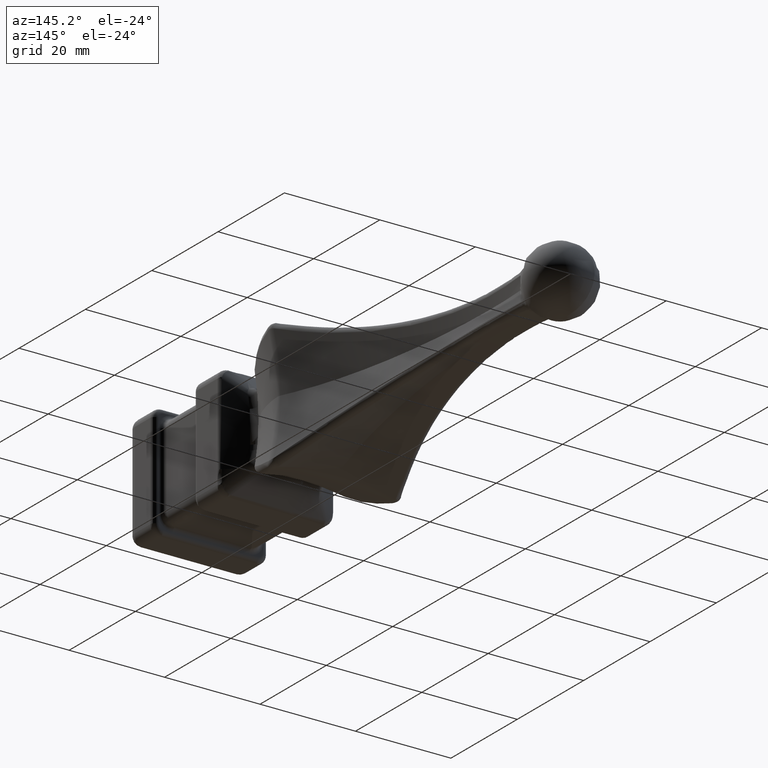
[diagram: clean part render]
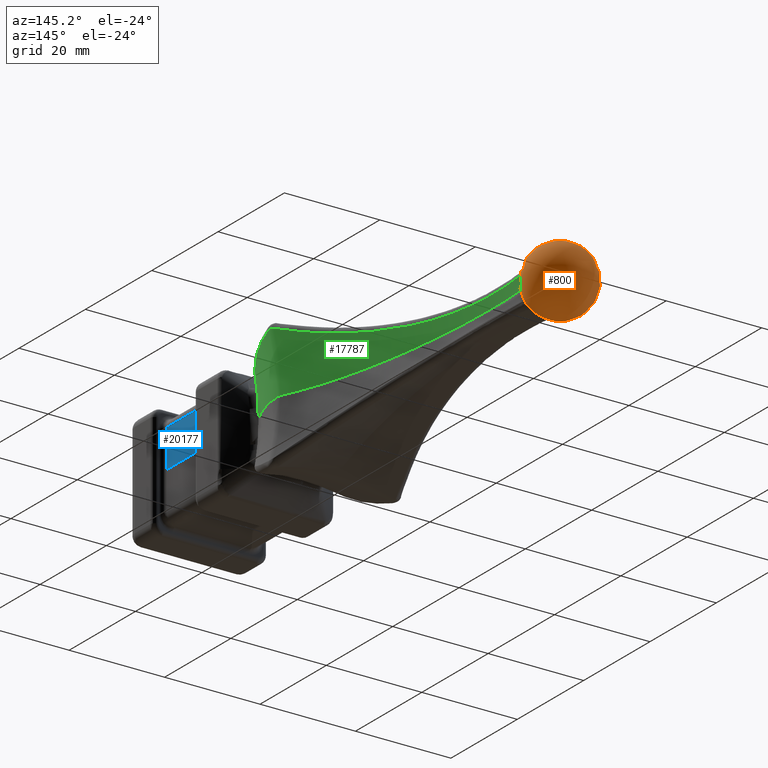
[diagram: same view with three faces highlighted in distinct colors, each labeled with its STEP entity id]
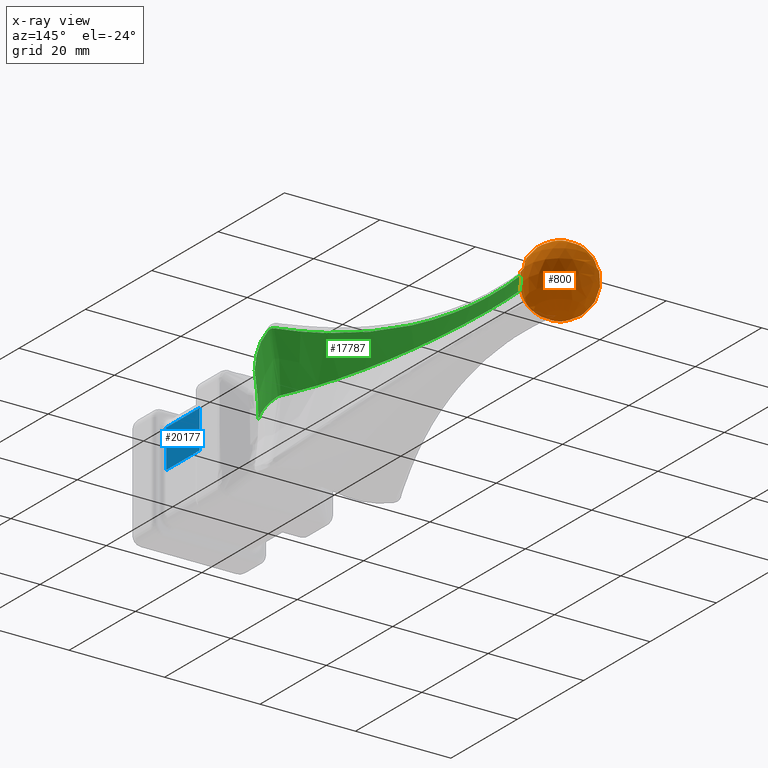
[diagram: x-ray of the same camera — body ghosted, the three highlighted faces saturated]
A machine part, auxiliary view with three faces highlighted in distinct colors.
The next image is the same camera in x-ray (body ghosted, the three faces saturated) — at least one of them is partly hidden behind the body in this view.
Their STEP definitions:

[orange] entity #800 — the highlighted spherical surface has radius 7 mm.
#140 = CARTESIAN_POINT ( 'NONE',  ( -2.588248331346139519, 63.23687483065199189, 4.433376363789666819 ) ) ;
#159 = ORIENTED_EDGE ( 'NONE', *, *, #3412, .T. ) ;
#192 = CARTESIAN_POINT ( 'NONE',  ( 4.268024273023879545, 63.42737115500516865, -3.149088999984718029 ) ) ;
#267 = CARTESIAN_POINT ( 'NONE',  ( 4.478024057012045311, 62.99835578102521083, -2.024660854072735550 ) ) ;
#328 = B_SPLINE_CURVE_WITH_KNOTS ( 'NONE', 3,
 ( #8765, #10263, #1465, #15911, #12092, #8599 ),
 .UNSPECIFIED., .F., .F.,
 ( 4, 2, 4 ),
 ( 4.534480159826896925E-20, 0.0008869341050420175400, 0.001773868210084029659 ),
 .UNSPECIFIED. ) ;
#332 = CARTESIAN_POINT ( 'NONE',  ( 2.959647299440161916, 63.36727956530779693, -4.334601859339713315 ) ) ;
#501 = CARTESIAN_POINT ( 'NONE',  ( 4.399130887182108651, 62.81603833045457463, 1.665589639174088754 ) ) ;
#634 = CARTESIAN_POINT ( 'NONE',  ( 3.736296900180650749, 63.52664665991706983, 3.878089262825789252 ) ) ;
#717 = CARTESIAN_POINT ( 'NONE',  ( 4.399130887182108651, 62.81603833045457463, 1.665589639174088754 ) ) ;
#800 = ADVANCED_FACE ( 'NONE', ( #7537 ), #8939, .T. ) ;
#1108 = CARTESIAN_POINT ( 'NONE',  ( 4.164026902031230826, 62.37310017457587463, 0.2939754137527350042 ) ) ;
#1189 = CARTESIAN_POINT ( 'NONE',  ( 4.201633058992319647, 62.42410017757504903, 0.5837566430972946918 ) ) ;
#1240 = CARTESIAN_POINT ( 'NONE',  ( 1.665589639177142312, 62.81603833045613783, 4.399130887182799654 ) ) ;
#1465 = CARTESIAN_POINT ( 'NONE',  ( -0.5837566430984427734, 62.42410017757527640, -4.201633058992505276 ) ) ;
#1761 = CARTESIAN_POINT ( 'NONE',  ( 2.867389985831997556, 63.33669981117935777, -4.363715184879287001 ) ) ;
#1865 = CARTESIAN_POINT ( 'NONE',  ( -3.878089262828128270, 63.52664665991696324, 3.736296900178079028 ) ) ;
#1927 = CARTESIAN_POINT ( 'NONE',  ( 2.397541925717111777, 63.15887901355646505, -4.456055201778486463 ) ) ;
#2018 = CARTESIAN_POINT ( 'NONE',  ( -1.665589639177118553, 62.81603833045612362, 4.399130887182795213 ) ) ;
#2080 = CARTESIAN_POINT ( 'NONE',  ( 4.480014289733656341, 63.17076291594582216, -2.402941765814902819 ) ) ;
#2101 = CARTESIAN_POINT ( 'NONE',  ( -4.122065436976741992, 63.48592684368493622, 3.412059772699672866 ) ) ;
#2185 = ORIENTED_EDGE ( 'NONE', *, *, #4786, .T. ) ;
#2422 = CARTESIAN_POINT ( 'NONE',  ( 4.399130887182111316, 62.81603833045457463, -1.665589639174102077 ) ) ;
#2456 = CARTESIAN_POINT ( 'NONE',  ( 3.880278391407268490, 63.52653610020637842, 3.733890906868658099 ) ) ;
#2515 = B_SPLINE_CURVE_WITH_KNOTS ( 'NONE', 3,
 ( #12505, #5463, #14229, #3494, #12432, #10773 ),
 .UNSPECIFIED., .F., .F.,
 ( 4, 2, 4 ),
 ( 0.000000000000000000, 0.0008748904172089971886, 0.001749780834417999798 ),
 .UNSPECIFIED. ) ;
#2760 = CARTESIAN_POINT ( 'NONE',  ( -4.069611438968237849, 63.50048093130534710, -3.493274654583412797 ) ) ;
#2827 = CARTESIAN_POINT ( 'NONE',  ( -4.334601859340763141, 63.36727956530674533, -2.959647299437022205 ) ) ;
#3144 = CARTESIAN_POINT ( 'NONE',  ( -4.137010229707008158, 62.35330659949563170, 5.802995667819876212E-15 ) ) ;
#3412 = EDGE_CURVE ( 'NONE', #15056, #13470, #19729, .T. ) ;
#3494 = CARTESIAN_POINT ( 'NONE',  ( -0.5837566430984429955, 62.42410017757526930, 4.201633058992504388 ) ) ;
#3604 = CARTESIAN_POINT ( 'NONE',  ( 1.665589639177119441, 62.81603833045612362, -4.399130887182794325 ) ) ;
#3684 = CARTESIAN_POINT ( 'NONE',  ( 3.878089262828119832, 63.52664665991690640, -3.736296900178084357 ) ) ;
#3738 = EDGE_CURVE ( 'NONE', #23406, #15056, #12464, .T. ) ;
#3930 = CARTESIAN_POINT ( 'NONE',  ( 3.655495390860984628, 63.52113212914929363, -3.948097385949056903 ) ) ;
#4259 = CARTESIAN_POINT ( 'NONE',  ( 4.164026902031229049, 62.37310017457588884, -0.2939754137527299527 ) ) ;
#4453 = CARTESIAN_POINT ( 'NONE',  ( 4.458265288463159060, 62.99438738422897899, 2.027017664148791365 ) ) ;
#4591 = CARTESIAN_POINT ( 'NONE',  ( -2.402941765818094044, 63.17076291594722903, -4.480014289733428967 ) ) ;
#4675 = CARTESIAN_POINT ( 'NONE',  ( -4.438546849320870180, 62.90712628831471420, -1.844985871345510287 ) ) ;
#4746 = CARTESIAN_POINT ( 'NONE',  ( -4.124006641163698639, 63.48530365147707499, -3.408881235299704660 ) ) ;
#4786 = EDGE_CURVE ( 'NONE', #18231, #8023, #10557, .T. ) ;
#5048 = CARTESIAN_POINT ( 'NONE',  ( 4.137010229707005493, 62.35330659949563170, 4.966132077100404992E-15 ) ) ;
#5463 = CARTESIAN_POINT ( 'NONE',  ( -1.406990631983017437, 62.68473537506567794, 4.342312923096714350 ) ) ;
#5568 = VERTEX_POINT ( 'NONE', #501 ) ;
#5583 = CARTESIAN_POINT ( 'NONE',  ( 4.339555982737086204, 63.37095658855356106, -2.963403104990208092 ) ) ;
#5750 = CARTESIAN_POINT ( 'NONE',  ( -3.142590110733721520, 63.42196502299371730, 4.263344601051541893 ) ) ;
#5839 = ORIENTED_EDGE ( 'NONE', *, *, #12457, .T. ) ;
#6087 = VERTEX_POINT ( 'NONE', #8293 ) ;
#6170 = ORIENTED_EDGE ( 'NONE', *, *, #17498, .T. ) ;
#6179 = CARTESIAN_POINT ( 'NONE',  ( 4.456055201778726271, 63.15887901355511502, 2.397541925713916555 ) ) ;
#6322 = CARTESIAN_POINT ( 'NONE',  ( -3.659811834418190024, 63.52151041466510861, -3.944522942018086731 ) ) ;
#6399 = CARTESIAN_POINT ( 'NONE',  ( -3.948097385951256477, 63.52113212914904494, -3.655495390858309435 ) ) ;
#6470 = CARTESIAN_POINT ( 'NONE',  ( -4.399130887182108651, 62.81603833045457463, -1.665589639174087866 ) ) ;
#6571 = CARTESIAN_POINT ( 'NONE',  ( 4.290668341216556492, 62.57987476594967546, 1.139104316289216934 ) ) ;
#6630 = CARTESIAN_POINT ( 'NONE',  ( 0.5837566430984540977, 62.42410017757528351, 4.201633058992506164 ) ) ;
#6705 = DIRECTION ( 'NONE',  ( 1.000000000000000000, 0.000000000000000000, 0.000000000000000000 ) ) ;
#6793 = B_SPLINE_CURVE_WITH_KNOTS ( 'NONE', 3,
 ( #14488, #267, #2080, #5583, #192, #20035, #21920, #14718, #3684, #12775, #3930, #22004, #16537, #9382, #11219, #332, #1761, #7318, #1927, #14408, #16304, #3604 ),
 .UNSPECIFIED., .F., .F.,
 ( 4, 2, 2, 2, 2, 2, 2, 2, 2, 2, 4 ),
 ( 7.854294591569230006E-18, 0.001226346430342773906, 0.001839519645514162702, 0.002146106253099860570, 0.002452692860685558220, 0.002759279468271256305, 0.003065866075856954389, 0.003372452683442652473, 0.003679039291028350124, 0.004292212506199758436, 0.004905385721371166748 ),
 .UNSPECIFIED. ) ;
#6891 = B_SPLINE_CURVE_WITH_KNOTS ( 'NONE', 3,
 ( #19115, #19190, #4591, #15473, #12033, #11887, #21086, #6322, #17277, #15696, #6399, #2760, #4746, #8155, #17360, #2827, #9975, #8303, #10055, #21006, #4675, #6470 ),
 .UNSPECIFIED., .F., .F.,
 ( 4, 2, 2, 2, 2, 2, 2, 2, 2, 2, 4 ),
 ( 0.000000000000000000, 0.001226346430342833754, 0.001839519645514250522, 0.002146106253099962918, 0.002452692860685674880, 0.002759279468271385975, 0.003065866075857097504, 0.003372452683442808165, 0.003679039291028519693, 0.004292212506199942317, 0.004905385721371365373 ),
 .UNSPECIFIED. ) ;
#6996 = CARTESIAN_POINT ( 'NONE',  ( 0.2939754137533061584, 62.37310017457594569, -4.164026902031319644 ) ) ;
#7254 = CARTESIAN_POINT ( 'NONE',  ( -3.733890906871248472, 63.52653610020649211, 3.880278391404916594 ) ) ;
#7318 = CARTESIAN_POINT ( 'NONE',  ( 2.588248331346119091, 63.23687483065193504, -4.433376363789670371 ) ) ;
#7413 = CARTESIAN_POINT ( 'NONE',  ( -2.867389985832010435, 63.33669981117937198, 4.363715184879281672 ) ) ;
#7497 = CARTESIAN_POINT ( 'NONE',  ( -4.478024057012045311, 62.99835578102519662, 2.024660854072733773 ) ) ;
#7537 = FACE_OUTER_BOUND ( 'NONE', #18749, .T. ) ;
#7562 = B_SPLINE_CURVE_WITH_KNOTS ( 'NONE', 3,
 ( #13348, #4259, #9718, #13278, #11564, #2422 ),
 .UNSPECIFIED., .F., .F.,
 ( 4, 2, 4 ),
 ( 0.000000000000000000, 0.0008869341050403021154, 0.001773868210080609652 ),
 .UNSPECIFIED. ) ;
#7581 = CARTESIAN_POINT ( 'NONE',  ( -4.339555982737088868, 63.37095658855356106, 2.963403104990192549 ) ) ;
#7757 = EDGE_CURVE ( 'NONE', #9001, #23406, #6891, .T. ) ;
#7923 = CARTESIAN_POINT ( 'NONE',  ( 4.263344601052897254, 63.42196502299284333, 3.142590110730611119 ) ) ;
#7982 = ORIENTED_EDGE ( 'NONE', *, *, #7757, .T. ) ;
#8023 = VERTEX_POINT ( 'NONE', #16411 ) ;
#8067 = ORIENTED_EDGE ( 'NONE', *, *, #16952, .T. ) ;
#8155 = CARTESIAN_POINT ( 'NONE',  ( -4.220800387937507558, 63.44615532346654874, -3.233841047315286765 ) ) ;
#8293 = CARTESIAN_POINT ( 'NONE',  ( 1.665589639177119441, 62.81603833045612362, -4.399130887182794325 ) ) ;
#8303 = CARTESIAN_POINT ( 'NONE',  ( -4.433376363790173080, 63.23687483065068449, -2.588248331342916764 ) ) ;
#8409 = CARTESIAN_POINT ( 'NONE',  ( 4.137010229707005493, 62.35330659949563170, 4.966132077100404992E-15 ) ) ;
#8599 = CARTESIAN_POINT ( 'NONE',  ( -1.665589639177119441, 62.81603833045612362, -4.399130887182794325 ) ) ;
#8641 = EDGE_CURVE ( 'NONE', #15354, #18811, #7562, .T. ) ;
#8765 = CARTESIAN_POINT ( 'NONE',  ( 2.479606545851672087E-16, 62.35330659949566723, -4.137010229707046349 ) ) ;
#8939 = SPHERICAL_SURFACE ( 'NONE', #15910, 7.000000000000002665 ) ;
#9001 = VERTEX_POINT ( 'NONE', #21933 ) ;
#9202 = VERTEX_POINT ( 'NONE', #18980 ) ;
#9331 = CARTESIAN_POINT ( 'NONE',  ( -4.268024273023881321, 63.42737115500518286, 3.149088999984712700 ) ) ;
#9350 = B_SPLINE_CURVE_WITH_KNOTS ( 'NONE', 3,
 ( #11613, #10155, #6571, #1189, #1108, #8409 ),
 .UNSPECIFIED., .F., .F.,
 ( 4, 2, 4 ),
 ( 0.000000000000000000, 0.0008748904172072948827, 0.001749780834414583911 ),
 .UNSPECIFIED. ) ;
#9382 = CARTESIAN_POINT ( 'NONE',  ( 3.233841047318325224, 63.44615532346730902, -4.220800387936011866 ) ) ;
#9572 = CARTESIAN_POINT ( 'NONE',  ( -4.201633058992317871, 62.42410017757504903, -0.5837566430972828124 ) ) ;
#9718 = CARTESIAN_POINT ( 'NONE',  ( 4.201633058992320535, 62.42410017757505614, -0.5837566430972918052 ) ) ;
#9757 = CARTESIAN_POINT ( 'NONE',  ( 4.334601859340767582, 63.36727956530677375, 2.959647299437012880 ) ) ;
#9835 = CARTESIAN_POINT ( 'NONE',  ( 3.948097385951261806, 63.52113212914901652, 3.655495390858300997 ) ) ;
#9975 = CARTESIAN_POINT ( 'NONE',  ( -4.363715184880198272, 63.33669981117824932, -2.867389985828836085 ) ) ;
#10055 = CARTESIAN_POINT ( 'NONE',  ( -4.456055201778725383, 63.15887901355510081, -2.397541925713919220 ) ) ;
#10155 = CARTESIAN_POINT ( 'NONE',  ( 4.342312923096168120, 62.68473537506458371, 1.406990631980389095 ) ) ;
#10239 = CARTESIAN_POINT ( 'NONE',  ( 1.665589639177119441, 62.81603833045612362, -4.399130887182794325 ) ) ;
#10263 = CARTESIAN_POINT ( 'NONE',  ( -0.2939754137533057143, 62.37310017457595279, -4.164026902031320532 ) ) ;
#10281 = ORIENTED_EDGE ( 'NONE', *, *, #11686, .T. ) ;
#10358 = CARTESIAN_POINT ( 'NONE',  ( 1.406990631983040085, 62.68473537506572058, 4.342312923096719679 ) ) ;
#10435 = DIRECTION ( 'NONE',  ( 0.000000000000000000, 0.000000000000000000, -1.000000000000000000 ) ) ;
#10557 = B_SPLINE_CURVE_WITH_KNOTS ( 'NONE', 3,
 ( #22811, #15396, #6630, #19035, #10358, #1240 ),
 .UNSPECIFIED., .F., .F.,
 ( 4, 2, 4 ),
 ( 0.000000000000000000, 0.0008869341050420252379, 0.001773868210084055897 ),
 .UNSPECIFIED. ) ;
#10773 = CARTESIAN_POINT ( 'NONE',  ( -4.286540393567421458E-16, 62.35330659949566723, 4.137010229707046349 ) ) ;
#11003 = CARTESIAN_POINT ( 'NONE',  ( -2.959647299440173018, 63.36727956530778272, 4.334601859339707097 ) ) ;
#11078 = CARTESIAN_POINT ( 'NONE',  ( -1.844985871348603146, 62.90712628831625608, 4.438546849321341803 ) ) ;
#11164 = CARTESIAN_POINT ( 'NONE',  ( -4.399130887182039373, 62.81603833045453200, 1.665589639174137382 ) ) ;
#11219 = CARTESIAN_POINT ( 'NONE',  ( 3.142590110733706865, 63.42196502299373151, -4.263344601051551663 ) ) ;
#11564 = CARTESIAN_POINT ( 'NONE',  ( 4.342312923096172561, 62.68473537506458371, -1.406990631980400419 ) ) ;
#11577 = VERTEX_POINT ( 'NONE', #20431 ) ;
#11595 = CARTESIAN_POINT ( 'NONE',  ( 4.438546849320870180, 62.90712628831471420, 1.844985871345509176 ) ) ;
#11613 = CARTESIAN_POINT ( 'NONE',  ( 4.399130887182108651, 62.81603833045457463, 1.665589639174088754 ) ) ;
#11686 = EDGE_CURVE ( 'NONE', #5568, #15354, #9350, .T. ) ;
#11887 = CARTESIAN_POINT ( 'NONE',  ( -3.412059772702609628, 63.48592684368553307, -4.122065436974947872 ) ) ;
#12033 = CARTESIAN_POINT ( 'NONE',  ( -3.149088999987798232, 63.42737115500609946, -4.268024273022541948 ) ) ;
#12092 = CARTESIAN_POINT ( 'NONE',  ( -1.406990631983018769, 62.68473537506566373, -4.342312923096713462 ) ) ;
#12330 = CARTESIAN_POINT ( 'NONE',  ( 0.000000000000000000, 68.00000000000000000, 0.000000000000000000 ) ) ;
#12432 = CARTESIAN_POINT ( 'NONE',  ( -0.2939754137533064360, 62.37310017457593858, 4.164026902031320532 ) ) ;
#12457 = EDGE_CURVE ( 'NONE', #13470, #11577, #17594, .T. ) ;
#12464 = B_SPLINE_CURVE_WITH_KNOTS ( 'NONE', 3,
 ( #18634, #20598, #15212, #9572, #13269, #22319 ),
 .UNSPECIFIED., .F., .F.,
 ( 4, 2, 4 ),
 ( 1.951563910473907981E-18, 0.0008748904172072993280, 0.001749780834414591283 ),
 .UNSPECIFIED. ) ;
#12505 = CARTESIAN_POINT ( 'NONE',  ( -1.665589639177118553, 62.81603833045612362, 4.399130887182795213 ) ) ;
#12578 = CARTESIAN_POINT ( 'NONE',  ( -4.201633058992321423, 62.42410017757504193, 0.5837566430973001319 ) ) ;
#12671 = CARTESIAN_POINT ( 'NONE',  ( -4.399130887182108651, 62.81603833045457463, -1.665589639174087866 ) ) ;
#12722 = CARTESIAN_POINT ( 'NONE',  ( -3.233841047318338546, 63.44615532346730191, 4.220800387936004761 ) ) ;
#12775 = CARTESIAN_POINT ( 'NONE',  ( 3.733890906871234705, 63.52653610020649211, -3.880278391404925920 ) ) ;
#12945 = CARTESIAN_POINT ( 'NONE',  ( -4.137010229707008158, 62.35330659949563170, 5.802995667819876212E-15 ) ) ;
#12963 = CARTESIAN_POINT ( 'NONE',  ( -4.480014289733651012, 63.17076291594582216, 2.402941765814900599 ) ) ;
#13195 = EDGE_CURVE ( 'NONE', #8023, #5568, #21238, .T. ) ;
#13269 = CARTESIAN_POINT ( 'NONE',  ( -4.164026902031229938, 62.37310017457586042, -0.2939754137527242905 ) ) ;
#13278 = CARTESIAN_POINT ( 'NONE',  ( 4.290668341216558268, 62.57987476594968967, -1.139104316289220931 ) ) ;
#13307 = CARTESIAN_POINT ( 'NONE',  ( 3.412059772702624727, 63.48592684368553307, 4.122065436974939878 ) ) ;
#13348 = CARTESIAN_POINT ( 'NONE',  ( 4.137010229707005493, 62.35330659949563170, 4.966132077100404992E-15 ) ) ;
#13382 = CARTESIAN_POINT ( 'NONE',  ( 3.659811834418202903, 63.52151041466512282, 3.944522942018079625 ) ) ;
#13470 = VERTEX_POINT ( 'NONE', #11164 ) ;
#14057 = CARTESIAN_POINT ( 'NONE',  ( -4.342312923096170785, 62.68473537506458371, 1.406990631980395978 ) ) ;
#14229 = CARTESIAN_POINT ( 'NONE',  ( -1.139104316291387198, 62.57987476595040732, 4.290668341216970383 ) ) ;
#14339 = CARTESIAN_POINT ( 'NONE',  ( 1.139104316291387420, 62.57987476595042153, -4.290668341216969495 ) ) ;
#14408 = CARTESIAN_POINT ( 'NONE',  ( 2.027017664151925747, 62.99438738423049244, -4.458265288463403309 ) ) ;
#14488 = CARTESIAN_POINT ( 'NONE',  ( 4.399130887182111316, 62.81603833045457463, -1.665589639174102077 ) ) ;
#14592 = CARTESIAN_POINT ( 'NONE',  ( -3.493274654586262518, 63.50048093130582316, 4.069611438966312278 ) ) ;
#14718 = CARTESIAN_POINT ( 'NONE',  ( 3.944522942020284528, 63.52151041466485992, -3.659811834415536591 ) ) ;
#14736 = CARTESIAN_POINT ( 'NONE',  ( -4.399130887182039373, 62.81603833045453200, 1.665589639174137382 ) ) ;
#14947 = CARTESIAN_POINT ( 'NONE',  ( 2.402941765818115361, 63.17076291594724324, 4.480014289733429855 ) ) ;
#15056 = VERTEX_POINT ( 'NONE', #12945 ) ;
#15100 = CARTESIAN_POINT ( 'NONE',  ( 4.069611438968243178, 63.50048093130537552, 3.493274654583404804 ) ) ;
#15212 = CARTESIAN_POINT ( 'NONE',  ( -4.290668341216555604, 62.57987476594968967, -1.139104316289208496 ) ) ;
#15250 = CARTESIAN_POINT ( 'NONE',  ( 3.498068338153559775, 63.50125302394335591, 4.066343125762529098 ) ) ;
#15354 = VERTEX_POINT ( 'NONE', #5048 ) ;
#15396 = CARTESIAN_POINT ( 'NONE',  ( 0.2939754137533099887, 62.37310017457595990, 4.164026902031322308 ) ) ;
#15473 = CARTESIAN_POINT ( 'NONE',  ( -2.963403104993369563, 63.37095658855461267, -4.339555982736027495 ) ) ;
#15696 = CARTESIAN_POINT ( 'NONE',  ( -3.880278391407260052, 63.52653610020639263, -3.733890906868666537 ) ) ;
#15910 = AXIS2_PLACEMENT_3D ( 'NONE', #12330, #10435, #6705 ) ;
#15911 = CARTESIAN_POINT ( 'NONE',  ( -1.139104316291386976, 62.57987476595039311, -4.290668341216968606 ) ) ;
#16304 = CARTESIAN_POINT ( 'NONE',  ( 1.844985871348601592, 62.90712628831627029, -4.438546849321340027 ) ) ;
#16411 = CARTESIAN_POINT ( 'NONE',  ( 1.665589639177142312, 62.81603833045613783, 4.399130887182799654 ) ) ;
#16537 = CARTESIAN_POINT ( 'NONE',  ( 3.408881235302617885, 63.48530365147765764, -4.124006641161921394 ) ) ;
#16558 = CARTESIAN_POINT ( 'NONE',  ( -4.066343125764481314, 63.50125302394286564, 3.498068338150693624 ) ) ;
#16755 = CARTESIAN_POINT ( 'NONE',  ( 2.963403104993389103, 63.37095658855461267, 4.339555982736022166 ) ) ;
#16952 = EDGE_CURVE ( 'NONE', #6087, #9202, #17519, .T. ) ;
#17094 = EDGE_CURVE ( 'NONE', #18811, #6087, #6793, .T. ) ;
#17277 = CARTESIAN_POINT ( 'NONE',  ( -3.736296900180637426, 63.52664665991704140, -3.878089262825796357 ) ) ;
#17360 = CARTESIAN_POINT ( 'NONE',  ( -4.263344601052893701, 63.42196502299287175, -3.142590110730623110 ) ) ;
#17498 = EDGE_CURVE ( 'NONE', #11577, #18231, #2515, .T. ) ;
#17519 = B_SPLINE_CURVE_WITH_KNOTS ( 'NONE', 3,
 ( #10239, #21372, #14339, #23323, #6996, #19477 ),
 .UNSPECIFIED., .F., .F.,
 ( 4, 2, 4 ),
 ( 0.000000000000000000, 0.0008748904172089976223, 0.001749780834418000666 ),
 .UNSPECIFIED. ) ;
#17533 = ORIENTED_EDGE ( 'NONE', *, *, #3738, .T. ) ;
#17594 = B_SPLINE_CURVE_WITH_KNOTS ( 'NONE', 3,
 ( #14736, #7497, #12963, #7581, #9331, #2101, #16558, #18067, #1865, #7254, #21779, #14592, #21710, #12722, #5750, #11003, #7413, #140, #20054, #21862, #11078, #2018 ),
 .UNSPECIFIED., .F., .F.,
 ( 4, 2, 2, 2, 2, 2, 2, 2, 2, 2, 4 ),
 ( 0.000000000000000000, 0.001226346430342767834, 0.001839519645514151643, 0.002146106253099848427, 0.002452692860685544776, 0.002759279468271240692, 0.003065866075856937475, 0.003372452683442633391, 0.003679039291028330175, 0.004292212506199724609, 0.004905385721371119043 ),
 .UNSPECIFIED. ) ;
#17924 = CARTESIAN_POINT ( 'NONE',  ( -4.164026902031230826, 62.37310017457587463, 0.2939754137527401667 ) ) ;
#18067 = CARTESIAN_POINT ( 'NONE',  ( -3.944522942020294742, 63.52151041466487413, 3.659811834415531262 ) ) ;
#18231 = VERTEX_POINT ( 'NONE', #21751 ) ;
#18581 = ORIENTED_EDGE ( 'NONE', *, *, #8641, .T. ) ;
#18600 = CARTESIAN_POINT ( 'NONE',  ( 4.220800387937509335, 63.44615532346653453, 3.233841047315277439 ) ) ;
#18634 = CARTESIAN_POINT ( 'NONE',  ( -4.399130887182108651, 62.81603833045457463, -1.665589639174087866 ) ) ;
#18745 = CARTESIAN_POINT ( 'NONE',  ( 4.124006641163704856, 63.48530365147707499, 3.408881235299696222 ) ) ;
#18749 = EDGE_LOOP ( 'NONE', ( #7982, #17533, #159, #5839, #6170, #2185, #19367, #10281, #18581, #19415, #8067, #21073 ) ) ;
#18811 = VERTEX_POINT ( 'NONE', #21209 ) ;
#18980 = CARTESIAN_POINT ( 'NONE',  ( 2.479606545851672087E-16, 62.35330659949566723, -4.137010229707046349 ) ) ;
#19035 = CARTESIAN_POINT ( 'NONE',  ( 1.139104316291406294, 62.57987476595043574, 4.290668341216973936 ) ) ;
#19115 = CARTESIAN_POINT ( 'NONE',  ( -1.665589639177119441, 62.81603833045612362, -4.399130887182794325 ) ) ;
#19190 = CARTESIAN_POINT ( 'NONE',  ( -2.024660854075853500, 62.99835578102675981, -4.478024057012367720 ) ) ;
#19367 = ORIENTED_EDGE ( 'NONE', *, *, #13195, .T. ) ;
#19415 = ORIENTED_EDGE ( 'NONE', *, *, #17094, .T. ) ;
#19464 = EDGE_CURVE ( 'NONE', #9202, #9001, #328, .T. ) ;
#19477 = CARTESIAN_POINT ( 'NONE',  ( 2.479606545851672087E-16, 62.35330659949566723, -4.137010229707046349 ) ) ;
#19584 = CARTESIAN_POINT ( 'NONE',  ( -4.399130887182039373, 62.81603833045453200, 1.665589639174137382 ) ) ;
#19729 = B_SPLINE_CURVE_WITH_KNOTS ( 'NONE', 3,
 ( #3144, #17924, #12578, #21232, #14057, #19584 ),
 .UNSPECIFIED., .F., .F.,
 ( 4, 2, 4 ),
 ( 0.000000000000000000, 0.0008869341050403004890, 0.001773868210080606833 ),
 .UNSPECIFIED. ) ;
#20035 = CARTESIAN_POINT ( 'NONE',  ( 4.122065436976737551, 63.48592684368496464, -3.412059772699685745 ) ) ;
#20054 = CARTESIAN_POINT ( 'NONE',  ( -2.397541925717129985, 63.15887901355646505, 4.456055201778485575 ) ) ;
#20413 = CARTESIAN_POINT ( 'NONE',  ( 4.363715184880201825, 63.33669981117824932, 2.867389985828829868 ) ) ;
#20431 = CARTESIAN_POINT ( 'NONE',  ( -1.665589639177118553, 62.81603833045612362, 4.399130887182795213 ) ) ;
#20485 = CARTESIAN_POINT ( 'NONE',  ( 2.024660854075876149, 62.99835578102677403, 4.478024057012367720 ) ) ;
#20564 = CARTESIAN_POINT ( 'NONE',  ( 1.665589639177142312, 62.81603833045613783, 4.399130887182799654 ) ) ;
#20598 = CARTESIAN_POINT ( 'NONE',  ( -4.342312923096169897, 62.68473537506459792, -1.406990631980386430 ) ) ;
#21006 = CARTESIAN_POINT ( 'NONE',  ( -4.458265288463159060, 62.99438738422896478, -2.027017664148792253 ) ) ;
#21073 = ORIENTED_EDGE ( 'NONE', *, *, #19464, .T. ) ;
#21086 = CARTESIAN_POINT ( 'NONE',  ( -3.498068338153546897, 63.50125302394332749, -4.066343125762537092 ) ) ;
#21209 = CARTESIAN_POINT ( 'NONE',  ( 4.399130887182111316, 62.81603833045457463, -1.665589639174102077 ) ) ;
#21232 = CARTESIAN_POINT ( 'NONE',  ( -4.290668341216559156, 62.57987476594968967, 1.139104316289228036 ) ) ;
#21238 = B_SPLINE_CURVE_WITH_KNOTS ( 'NONE', 3,
 ( #20564, #20485, #14947, #16755, #22293, #13307, #15250, #13382, #634, #2456, #9835, #15100, #18745, #18600, #7923, #9757, #20413, #22355, #6179, #4453, #11595, #717 ),
 .UNSPECIFIED., .F., .F.,
 ( 4, 2, 2, 2, 2, 2, 2, 2, 2, 2, 4 ),
 ( 0.000000000000000000, 0.001226346430342826381, 0.001839519645514239680, 0.002146106253099949908, 0.002452692860685660569, 0.002759279468271370363, 0.003065866075857080156, 0.003372452683442789950, 0.003679039291028499744, 0.004292212506199919765, 0.004905385721371339353 ),
 .UNSPECIFIED. ) ;
#21372 = CARTESIAN_POINT ( 'NONE',  ( 1.406990631983018547, 62.68473537506567794, -4.342312923096715238 ) ) ;
#21710 = CARTESIAN_POINT ( 'NONE',  ( -3.408881235302627655, 63.48530365147767185, 4.124006641161916953 ) ) ;
#21751 = CARTESIAN_POINT ( 'NONE',  ( -4.286540393567421458E-16, 62.35330659949566723, 4.137010229707046349 ) ) ;
#21779 = CARTESIAN_POINT ( 'NONE',  ( -3.655495390860996618, 63.52113212914926521, 3.948097385949043581 ) ) ;
#21862 = CARTESIAN_POINT ( 'NONE',  ( -2.027017664151930187, 62.99438738423047823, 4.458265288463403309 ) ) ;
#21920 = CARTESIAN_POINT ( 'NONE',  ( 4.066343125764471544, 63.50125302394286564, -3.498068338150702061 ) ) ;
#21933 = CARTESIAN_POINT ( 'NONE',  ( -1.665589639177119441, 62.81603833045612362, -4.399130887182794325 ) ) ;
#22004 = CARTESIAN_POINT ( 'NONE',  ( 3.493274654586254524, 63.50048093130583737, -4.069611438966320272 ) ) ;
#22293 = CARTESIAN_POINT ( 'NONE',  ( 3.149088999987816440, 63.42737115500608525, 4.268024273022533954 ) ) ;
#22319 = CARTESIAN_POINT ( 'NONE',  ( -4.137010229707008158, 62.35330659949563170, 5.802995667819876212E-15 ) ) ;
#22355 = CARTESIAN_POINT ( 'NONE',  ( 4.433376363790175745, 63.23687483065069870, 2.588248331342914099 ) ) ;
#22811 = CARTESIAN_POINT ( 'NONE',  ( -4.286540393567421458E-16, 62.35330659949566723, 4.137010229707046349 ) ) ;
#23323 = CARTESIAN_POINT ( 'NONE',  ( 0.5837566430984426624, 62.42410017757527640, -4.201633058992504388 ) ) ;
#23406 = VERTEX_POINT ( 'NONE', #12671 ) ;

[blue] entity #20177 — the highlighted planar face has unit normal (1, 0, -0).
#139 = VERTEX_POINT ( 'NONE', #7091 ) ;
#518 = CARTESIAN_POINT ( 'NONE',  ( 10.00000000000000178, -25.24999999999999289, 0.000000000000000000 ) ) ;
#571 = CARTESIAN_POINT ( 'NONE',  ( 10.00000000000000533, -36.25000000000000711, 8.000000000000001776 ) ) ;
#1363 = DIRECTION ( 'NONE',  ( 1.734723475976127934E-16, -0.000000000000000000, 1.000000000000000000 ) ) ;
#2051 = LINE ( 'NONE', #518, #13643 ) ;
#2354 = LINE ( 'NONE', #15293, #18496 ) ;
#2681 = LINE ( 'NONE', #21044, #21923 ) ;
#3460 = CARTESIAN_POINT ( 'NONE',  ( 10.00000000000000355, -25.24999999999999289, 8.000000000000000000 ) ) ;
#4196 = CARTESIAN_POINT ( 'NONE',  ( 10.00000000000000355, -26.24999999999999645, 8.000000000000000000 ) ) ;
#5477 = LINE ( 'NONE', #3460, #14513 ) ;
#7091 = CARTESIAN_POINT ( 'NONE',  ( 10.00000000000000355, -36.25000000000000711, 0.000000000000000000 ) ) ;
#7807 = ORIENTED_EDGE ( 'NONE', *, *, #9689, .T. ) ;
#8826 = FACE_OUTER_BOUND ( 'NONE', #13418, .T. ) ;
#9538 = DIRECTION ( 'NONE',  ( -1.734723475976127934E-16, 0.000000000000000000, -1.000000000000000000 ) ) ;
#9554 = VERTEX_POINT ( 'NONE', #4196 ) ;
#9689 = EDGE_CURVE ( 'NONE', #15757, #139, #2354, .T. ) ;
#10022 = AXIS2_PLACEMENT_3D ( 'NONE', #20342, #14642, #9538 ) ;
#10258 = VERTEX_POINT ( 'NONE', #20153 ) ;
#11122 = PLANE ( 'NONE',  #10022 ) ;
#12007 = DIRECTION ( 'NONE',  ( -1.734723475976127934E-16, 0.000000000000000000, -1.000000000000000000 ) ) ;
#12361 = EDGE_CURVE ( 'NONE', #9554, #15757, #5477, .T. ) ;
#13192 = DIRECTION ( 'NONE',  ( 1.445602896647337931E-16, -1.000000000000000000, 0.000000000000000000 ) ) ;
#13418 = EDGE_LOOP ( 'NONE', ( #18553, #7807, #15552, #16896 ) ) ;
#13643 = VECTOR ( 'NONE', #13192, 1000.000000000000000 ) ;
#14513 = VECTOR ( 'NONE', #15912, 1000.000000000000000 ) ;
#14642 = DIRECTION ( 'NONE',  ( 1.000000000000000000, 1.445602896647337931E-16, -1.734723475976127934E-16 ) ) ;
#15293 = CARTESIAN_POINT ( 'NONE',  ( 10.00000000000000355, -36.25000000000000711, 1.734723475976127195E-16 ) ) ;
#15406 = EDGE_CURVE ( 'NONE', #10258, #9554, #2681, .T. ) ;
#15552 = ORIENTED_EDGE ( 'NONE', *, *, #18941, .F. ) ;
#15757 = VERTEX_POINT ( 'NONE', #571 ) ;
#15912 = DIRECTION ( 'NONE',  ( 1.445602896647338177E-16, -1.000000000000000000, 1.445602896647337684E-16 ) ) ;
#16896 = ORIENTED_EDGE ( 'NONE', *, *, #15406, .T. ) ;
#18496 = VECTOR ( 'NONE', #12007, 1000.000000000000000 ) ;
#18553 = ORIENTED_EDGE ( 'NONE', *, *, #12361, .T. ) ;
#18941 = EDGE_CURVE ( 'NONE', #10258, #139, #2051, .T. ) ;
#20153 = CARTESIAN_POINT ( 'NONE',  ( 10.00000000000000178, -26.24999999999999645, 0.000000000000000000 ) ) ;
#20177 = ADVANCED_FACE ( 'NONE', ( #8826 ), #11122, .T. ) ;
#20342 = CARTESIAN_POINT ( 'NONE',  ( 10.00000000000000355, -25.24999999999999289, 9.999999999987206678 ) ) ;
#21044 = CARTESIAN_POINT ( 'NONE',  ( 10.00000000000000355, -26.24999999999999645, 8.000000000000000000 ) ) ;
#21923 = VECTOR ( 'NONE', #1363, 1000.000000000000000 ) ;

[green] entity #17787 — the highlighted face is a freeform B-spline surface patch.
#51 = CARTESIAN_POINT ( 'NONE',  ( 9.089507886685982641, -9.851439428416769672, -1.039309426281026516E-15 ) ) ;
#71 = CARTESIAN_POINT ( 'NONE',  ( 10.66013364980173073, -6.509686201536424299, -7.642354766601944531E-16 ) ) ;
#137 = CARTESIAN_POINT ( 'NONE',  ( 4.084095949260219349, 65.00000000000000000, -3.554666846164149963 ) ) ;
#209 = CARTESIAN_POINT ( 'NONE',  ( 12.35587598936656661, 0.1731413304700771538, -7.138364592670788156 ) ) ;
#229 = CARTESIAN_POINT ( 'NONE',  ( 11.70022174028316897, 1.088503866713622426, -1.382357769919018153E-15 ) ) ;
#280 = CARTESIAN_POINT ( 'NONE',  ( 8.697324480793799495, -10.36600823471877497, -0.07270971805892470496 ) ) ;
#354 = CARTESIAN_POINT ( 'NONE',  ( 11.47428454134255738, -7.420088566662869312, -9.031283173792266084 ) ) ;
#440 = CARTESIAN_POINT ( 'NONE',  ( 2.108233144686161520, 42.78077431313261769, 0.8342126229220272471 ) ) ;
#464 = EDGE_CURVE ( 'NONE', #23401, #5422, #14036, .T. ) ;
#564 = CARTESIAN_POINT ( 'NONE',  ( 9.086514475162925208, -9.855104918972967809, 1.417943683520374476 ) ) ;
#584 = CARTESIAN_POINT ( 'NONE',  ( 14.03014205141056614, 0.1731413304700777367, -14.06703930854518347 ) ) ;
#661 = CARTESIAN_POINT ( 'NONE',  ( 2.773624533673034964, 42.78077431313261769, -21.33295401764565113 ) ) ;
#1039 = CARTESIAN_POINT ( 'NONE',  ( 9.833574572509364842, -9.823411236304195882, 8.557350471120965807 ) ) ;
#1140 = B_SPLINE_CURVE_WITH_KNOTS ( 'NONE', 3,
 ( #4476, #8105, #8332, #13628, #1039, #4395 ),
 .UNSPECIFIED., .F., .F.,
 ( 4, 2, 4 ),
 ( 0.000000000000000000, 0.0003059131449923647365, 0.0006118262899847294730 ),
 .UNSPECIFIED. ) ;
#1260 = CARTESIAN_POINT ( 'NONE',  ( 3.533143131304358864, 61.12110105563703399, 1.720528513449257613 ) ) ;
#1334 = B_SPLINE_CURVE_WITH_KNOTS ( 'NONE', 3,
 ( #13548, #6482, #13693, #20717, #17147, #2843, #4604, #20874, #6336, #20635, #4378, #19054, #4688, #15488, #15332, #2535, #15184, #18975, #13467, #16982, #9843, #22448 ),
 .UNSPECIFIED., .F., .F.,
 ( 4, 2, 2, 2, 2, 2, 2, 2, 2, 2, 4 ),
 ( 0.003593303953008526643, 0.01153155944662569155, 0.01946981494024285428, 0.03534632592747718322, 0.03931545367428576632, 0.04328458142109434942, 0.05122283691471150868, 0.05916109240832867489, 0.06313022015513726493, 0.06511478402854155301, 0.06709934790194584109 ),
 .UNSPECIFIED. ) ;
#1648 = CARTESIAN_POINT ( 'NONE',  ( 2.961507215248867730, 48.79169151153794814, 1.626303258728258623E-16 ) ) ;
#1703 = CARTESIAN_POINT ( 'NONE',  ( 9.411483770671644322, -10.36600823471876964, 8.114170810021757774 ) ) ;
#1764 = CARTESIAN_POINT ( 'NONE',  ( 13.36861548744270856, 0.9769426254686837119, 12.19767723644735824 ) ) ;
#1808 = CARTESIAN_POINT ( 'NONE',  ( 3.571590189842346330, 36.70316563045749803, 4.878909776184767981E-16 ) ) ;
#1850 = CARTESIAN_POINT ( 'NONE',  ( 13.45352770620779737, 0.7454325682719350477, 12.25632294754217533 ) ) ;
#1886 = CARTESIAN_POINT ( 'NONE',  ( 11.78579592378089025, 0.9180797152636838154, -1.158741071843883061E-15 ) ) ;
#1928 = EDGE_LOOP ( 'NONE', ( #11536, #10098, #7828, #15334, #19911, #3870, #18488 ) ) ;
#1945 = CARTESIAN_POINT ( 'NONE',  ( 9.863700679619315181, -10.18300411735938482, -9.936410397678196560 ) ) ;
#2016 = CARTESIAN_POINT ( 'NONE',  ( 8.587827057705515799, -10.54901235207815979, -0.1090645770883753446 ) ) ;
#2027 = CARTESIAN_POINT ( 'NONE',  ( 10.01512310494794100, -9.640702439552065073, 8.997234317120378577 ) ) ;
#2036 = CARTESIAN_POINT ( 'NONE',  ( 11.96516854405795449, -0.7306889655712434095, 2.466136425930895043E-15 ) ) ;
#2099 = CARTESIAN_POINT ( 'NONE',  ( 2.108233144686157967, 42.78077431313261769, -19.39354210689467450 ) ) ;
#2181 = CARTESIAN_POINT ( 'NONE',  ( 13.29198864509187139, -4.128284202623072829, -12.34390331754536518 ) ) ;
#2252 = CARTESIAN_POINT ( 'NONE',  ( 0.5924331498006769614, 42.78077431313261769, -9.279664741986314525 ) ) ;
#2535 = CARTESIAN_POINT ( 'NONE',  ( 11.16262982213287458, 6.778637263769919485, 9.964173630148597027 ) ) ;
#2843 = CARTESIAN_POINT ( 'NONE',  ( 3.897992912293511303, 40.57451386293886486, 2.661888795475145120 ) ) ;
#2977 = EDGE_CURVE ( 'NONE', #5422, #17029, #1140, .T. ) ;
#3252 = CARTESIAN_POINT ( 'NONE',  ( 3.317792656004957319, 60.88913786003063677, -7.318364664277154930E-16 ) ) ;
#3337 = CARTESIAN_POINT ( 'NONE',  ( 3.609606331778369093, 61.25451730530354411, 2.128575784365699164 ) ) ;
#3382 = CARTESIAN_POINT ( 'NONE',  ( 9.727401359238596612, -10.36600823471876964, 9.727401359238562861 ) ) ;
#3435 = B_SPLINE_CURVE_WITH_KNOTS ( 'NONE', 3,
 ( #3252, #12194, #12124, #1260, #3337, #15717 ),
 .UNSPECIFIED., .F., .F.,
 ( 4, 2, 4 ),
 ( 4.090649770128027483E-20, 0.001321927522235251656, 0.002643855044470503311 ),
 .UNSPECIFIED. ) ;
#3459 = CARTESIAN_POINT ( 'NONE',  ( 13.98512764379215412, -0.3356598102932541461, 13.98512764379221451 ) ) ;
#3543 = CARTESIAN_POINT ( 'NONE',  ( 4.250000000000000000, 65.00000000000000000, 4.249999999999992006 ) ) ;
#3606 = CARTESIAN_POINT ( 'NONE',  ( 13.55402796878899530, 0.0009056597423814681047, 12.33586052695374313 ) ) ;
#3645 = CARTESIAN_POINT ( 'NONE',  ( 4.187258634358484777, 30.68530448426069057, 4.878909776184772911E-16 ) ) ;
#3723 = CARTESIAN_POINT ( 'NONE',  ( 5.537555499575200102, 21.70906955942766103, -3.252606517456512809E-16 ) ) ;
#3787 = CARTESIAN_POINT ( 'NONE',  ( 13.36384600673486389, 0.1731413304700777367, -11.78910055727523520 ) ) ;
#3810 = CARTESIAN_POINT ( 'NONE',  ( 11.33844926606333026, -4.402628679807096823, -7.642354766601907060E-16 ) ) ;
#3867 = CARTESIAN_POINT ( 'NONE',  ( 9.167344453149638639, -9.999999999999998224, -5.033266113819109933 ) ) ;
#3870 = ORIENTED_EDGE ( 'NONE', *, *, #2977, .T. ) ;
#3947 = CARTESIAN_POINT ( 'NONE',  ( 9.727401359238616152, -10.36600823471876964, -9.872820795356393120 ) ) ;
#3967 = CARTESIAN_POINT ( 'NONE',  ( 11.08292321638191780, 2.471350178104092077, -1.788933584601085077E-15 ) ) ;
#4013 = CARTESIAN_POINT ( 'NONE',  ( 12.34097431892120156, -0.3356598102932545902, -6.969642051675049466 ) ) ;
#4024 = CARTESIAN_POINT ( 'NONE',  ( 13.35396443217146611, -1.349082966571301334, 12.15556205413928303 ) ) ;
#4100 = CARTESIAN_POINT ( 'NONE',  ( 1.100276004097039406, 42.78077431313263901, -3.148358305465273954 ) ) ;
#4221 = CARTESIAN_POINT ( 'NONE',  ( 9.142130046920346587, -9.861084946545117802, 2.834596982926563147 ) ) ;
#4378 = CARTESIAN_POINT ( 'NONE',  ( 6.422514604118227943, 23.94084922074712196, 5.189081815503893580 ) ) ;
#4395 = CARTESIAN_POINT ( 'NONE',  ( 9.802529214867281127, -9.849511222483954498, 8.463648851003220841 ) ) ;
#4476 = CARTESIAN_POINT ( 'NONE',  ( 10.01512310494794100, -9.640702439552065073, 8.997234317120378577 ) ) ;
#4604 = CARTESIAN_POINT ( 'NONE',  ( 4.441334683114435578, 35.42566771208884546, 3.203183386083685136 ) ) ;
#4688 = CARTESIAN_POINT ( 'NONE',  ( 7.856967422305178417, 17.66019300185968177, 6.630885813753545577 ) ) ;
#5124 = CARTESIAN_POINT ( 'NONE',  ( 3.317792656004957319, 60.88913786003063677, -7.318364664277154930E-16 ) ) ;
#5295 = CARTESIAN_POINT ( 'NONE',  ( 3.038436994069126040, 45.76824708838413613, -2.439454888092384977E-16 ) ) ;
#5339 = CARTESIAN_POINT ( 'NONE',  ( 13.50698150542802800, 0.5028577278399699590, 12.29850997811512059 ) ) ;
#5422 = VERTEX_POINT ( 'NONE', #14805 ) ;
#5599 = CARTESIAN_POINT ( 'NONE',  ( 9.667771162631664694, -10.00000000000000000, 8.355467255026738371 ) ) ;
#5619 = CARTESIAN_POINT ( 'NONE',  ( 11.99726300423894187, -0.4536172526572582187, -2.528393347554086118E-15 ) ) ;
#5669 = CARTESIAN_POINT ( 'NONE',  ( 12.34097431892120689, -0.3356598102932532579, 7.124700275387899850 ) ) ;
#5674 = EDGE_CURVE ( 'NONE', #9311, #7561, #3435, .T. ) ;
#5686 = CARTESIAN_POINT ( 'NONE',  ( 7.507253138915106483, 12.84071942332789540, -3.252606517456514781E-16 ) ) ;
#5710 = CARTESIAN_POINT ( 'NONE',  ( 3.695224056026936044, 61.43058906007147613, 2.523706378309231724 ) ) ;
#5747 = CARTESIAN_POINT ( 'NONE',  ( 11.71978409436971091, 0.6760241364080701310, -0.2434227091486908245 ) ) ;
#5827 = CARTESIAN_POINT ( 'NONE',  ( 11.47428454134254849, -7.420088566662869312, 10.05631275040277117 ) ) ;
#5906 = CARTESIAN_POINT ( 'NONE',  ( 10.45996576412486512, -7.420088566662871976, 0.5125147883052542097 ) ) ;
#5951 = CARTESIAN_POINT ( 'NONE',  ( 9.089507886685982641, -9.851439428416769672, -1.039309426281026516E-15 ) ) ;
#6104 = CARTESIAN_POINT ( 'NONE',  ( 9.379237587817549127, -9.862180250747544008, 5.660388331337148138 ) ) ;
#6293 = VERTEX_POINT ( 'NONE', #7245 ) ;
#6336 = CARTESIAN_POINT ( 'NONE',  ( 5.686332563332493706, 27.75882369919524706, 4.450302183466361861 ) ) ;
#6482 = CARTESIAN_POINT ( 'NONE',  ( 3.531057162300552665, 58.79815374709122011, 2.340519311815916215 ) ) ;
#6826 = CARTESIAN_POINT ( 'NONE',  ( 9.802529214867281127, -9.849511222483954498, 8.463648851003220841 ) ) ;
#7036 = CARTESIAN_POINT ( 'NONE',  ( 3.005720662781168784, 54.84213658543379921, -8.131516293641284488E-17 ) ) ;
#7103 = CARTESIAN_POINT ( 'NONE',  ( 3.342985366599766639, 39.72406372796689311, -2.439454888092383990E-16 ) ) ;
#7245 = CARTESIAN_POINT ( 'NONE',  ( 13.36861548744270856, 0.9769426254686837119, 12.19767723644735824 ) ) ;
#7276 = CARTESIAN_POINT ( 'NONE',  ( 10.40119344354104847, -7.199354638878880941, 1.016439536705336206E-17 ) ) ;
#7348 = CARTESIAN_POINT ( 'NONE',  ( 11.90279652573628866, -6.148091756099476335, 10.77095118497808102 ) ) ;
#7411 = CARTESIAN_POINT ( 'NONE',  ( 12.35587598936657194, 0.1731413304700787081, 7.101467335536204573 ) ) ;
#7495 = CARTESIAN_POINT ( 'NONE',  ( 2.290964565412154208, 20.45040467521440775, -13.74513794084074902 ) ) ;
#7516 = CARTESIAN_POINT ( 'NONE',  ( 11.98614404824211199, -0.5459124868557032606, 2.466136425930895832E-15 ) ) ;
#7561 = VERTEX_POINT ( 'NONE', #5710 ) ;
#7579 = CARTESIAN_POINT ( 'NONE',  ( 9.051590716567501360, -10.18300411735938305, -5.018131605746089186 ) ) ;
#7602 = CARTESIAN_POINT ( 'NONE',  ( 8.324469464479340886, 9.924355132601244023, -1.626303258728256651E-16 ) ) ;
#7650 = CARTESIAN_POINT ( 'NONE',  ( 9.667771162631677129, -10.00000000000000000, -8.355467255026781004 ) ) ;
#7726 = CARTESIAN_POINT ( 'NONE',  ( 13.26119801601832471, 0.6760241364080697979, -12.12695994987763193 ) ) ;
#7828 = ORIENTED_EDGE ( 'NONE', *, *, #17377, .T. ) ;
#8105 = CARTESIAN_POINT ( 'NONE',  ( 9.977190638486662877, -9.680684262701076293, 8.911433047746863068 ) ) ;
#8332 = CARTESIAN_POINT ( 'NONE',  ( 9.940434106040251905, -9.718057308546111273, 8.823941785602519516 ) ) ;
#8536 = EDGE_CURVE ( 'NONE', #9311, #12506, #11224, .T. ) ;
#9100 = CARTESIAN_POINT ( 'NONE',  ( 9.471786754081533033, -9.209416374331818034, 2.143416873027001013E-14 ) ) ;
#9252 = CARTESIAN_POINT ( 'NONE',  ( 13.33078343975850366, -0.3356598102932541461, -11.57413784233908416 ) ) ;
#9311 = VERTEX_POINT ( 'NONE', #16749 ) ;
#9329 = CARTESIAN_POINT ( 'NONE',  ( 3.833801712783555526, 65.00000000000004263, 2.144553377138851857 ) ) ;
#9402 = CARTESIAN_POINT ( 'NONE',  ( 9.411483770671656757, -10.36600823471876964, -8.259590246139600467 ) ) ;
#9424 = CARTESIAN_POINT ( 'NONE',  ( 10.34606865766977712, 4.214018691682379192, -1.788933584601083499E-15 ) ) ;
#9485 = CARTESIAN_POINT ( 'NONE',  ( 1.100276004097028970, 42.78077431313260348, -15.41097117850738307 ) ) ;
#9540 = CARTESIAN_POINT ( 'NONE',  ( 9.560316439962715407, -9.857608171673364339, 7.066499738795155139 ) ) ;
#9560 = CARTESIAN_POINT ( 'NONE',  ( 3.180941838542599598, 20.45040467521440419, -3.627078444937531732 ) ) ;
#9701 = CARTESIAN_POINT ( 'NONE',  ( 6.111440610478135582, 20.45040467521440064, -33.60171649215941869 ) ) ;
#9843 = CARTESIAN_POINT ( 'NONE',  ( 13.13493789343376328, 1.548602519664963983, 11.96059040414681895 ) ) ;
#10098 = ORIENTED_EDGE ( 'NONE', *, *, #5674, .T. ) ;
#10363 = B_SPLINE_CURVE_WITH_KNOTS ( 'NONE', 3,
 ( #15010, #9540, #6104, #4221, #564, #5951 ),
 .UNSPECIFIED., .F., .F.,
 ( 4, 2, 4 ),
 ( 0.000000000000000000, 0.004253997189835818753, 0.008507994379671637505 ),
 .UNSPECIFIED. ) ;
#10672 = CARTESIAN_POINT ( 'NONE',  ( 9.863700679619295641, -10.18300411735938482, 9.863700679619267220 ) ) ;
#10689 = CARTESIAN_POINT ( 'NONE',  ( 2.977972357049576413, 53.32922557384316775, 1.626303258728256651E-16 ) ) ;
#10841 = CARTESIAN_POINT ( 'NONE',  ( 3.116044902025652430, 57.86894299072380932, -8.131516293641270929E-17 ) ) ;
#10931 = CARTESIAN_POINT ( 'NONE',  ( 9.089507886685982641, -9.851439428416769672, -1.039309426281026516E-15 ) ) ;
#11001 = CARTESIAN_POINT ( 'NONE',  ( 9.167344453149633310, -10.00000000000000178, 5.033266113819053977 ) ) ;
#11077 = CARTESIAN_POINT ( 'NONE',  ( 10.79918964203841902, -7.420088566662868423, -5.246625741891536521 ) ) ;
#11087 = CARTESIAN_POINT ( 'NONE',  ( 12.48452421206723706, -4.618402030524426216, 11.32431601530590015 ) ) ;
#11151 = CARTESIAN_POINT ( 'NONE',  ( 8.916319326970370440, -10.00000000000000533, -2.341876692568689577E-14 ) ) ;
#11224 = B_SPLINE_CURVE_WITH_KNOTS ( 'NONE', 3,
 ( #5124, #16015, #10841, #7036, #10689, #1648, #5295, #7103, #1808, #3645, #16262, #3723, #16343, #5686, #7602, #20234, #9424, #3967, #11259, #18249, #229, #1886, #18337, #16496, #16575, #14443, #5619, #7516, #2036, #12900, #18162, #14683, #3810, #71, #7276, #21880, #9100, #10931 ),
 .UNSPECIFIED., .F., .F.,
 ( 4, 2, 2, 2, 2, 2, 2, 2, 2, 1, 2, 2, 2, 2, 2, 1, 2, 2, 2, 4 ),
 ( 0.004132318498976641531, 0.008671897811190178856, 0.01321147712340371705, 0.02229063574783078996, 0.03136979437225786982, 0.04044895299668493927, 0.04952811162111202259, 0.05860727024553909204, 0.06314684955775264064, 0.06428174438580601391, 0.06484919179983271442, 0.06541663921385940106, 0.06598408662788610157, 0.06655153404191278821, 0.06683525774892613847, 0.06711898145593948872, 0.06768642886996617536, 0.07222600818217969620, 0.07449579783828645663, 0.07676558749439320317 ),
 .UNSPECIFIED. ) ;
#11241 = CARTESIAN_POINT ( 'NONE',  ( 10.79918964203841902, -7.420088566662869312, 6.271655318502029175 ) ) ;
#11259 = CARTESIAN_POINT ( 'NONE',  ( 11.30888733225697429, 1.950541403961694620, -5.179775879049498065E-14 ) ) ;
#11314 = CARTESIAN_POINT ( 'NONE',  ( 4.946561883244191549, 20.45040467521440064, 2.927949942811796546 ) ) ;
#11522 = B_SPLINE_SURFACE_WITH_KNOTS ( 'NONE', 3, 3, ( 
 ( #14194, #3382, #10672, #12475, #14360, #14280, #3459, #21544, #16074, #17905, #23346, #3543 ),
 ( #12557, #1703, #16394, #5599, #5827, #16700, #14590, #14818, #14897, #11314, #440, #18389 ),
 ( #16636, #16469, #13107, #11001, #11241, #12877, #5669, #7411, #21858, #9560, #4100, #9329 ),
 ( #2016, #280, #21941, #11151, #5906, #13035, #18229, #18315, #5747, #7495, #2252, #20295 ),
 ( #20052, #18464, #7579, #3867, #11077, #18548, #4013, #209, #12961, #14668, #9485, #22087 ),
 ( #20213, #9402, #22022, #7650, #354, #12793, #9252, #3787, #7726, #20123, #2099, #137 ),
 ( #14734, #3947, #1945, #16556, #20363, #2181, #11541, #584, #22311, #9701, #661, #20589 ) ),
 .UNSPECIFIED., .F., .F., .F.,
 ( 4, 1, 1, 1, 4 ),
 ( 4, 3, 2, 1, 2, 4 ),
 ( 0.000000000000000000, 0.06250000000000004163, 0.1250000000000000833, 0.1875000000000000555, 0.2500000000000001665 ),
 ( -0.01000000000000000021, 0.000000000000000000, 0.1409755950064599250, 0.1473803183571097963, 0.1603551382681464577, 1.000000000000000000 ),
 .UNSPECIFIED. ) ;
#11536 = ORIENTED_EDGE ( 'NONE', *, *, #8536, .F. ) ;
#11541 = CARTESIAN_POINT ( 'NONE',  ( 13.98512764379217188, -0.3356598102932541461, -13.83006942007935258 ) ) ;
#12124 = CARTESIAN_POINT ( 'NONE',  ( 3.404658050752686016, 60.93895176320312856, 0.8777465965532238457 ) ) ;
#12194 = CARTESIAN_POINT ( 'NONE',  ( 3.352465431682132291, 60.89052080326251115, 0.4398871799431025020 ) ) ;
#12475 = CARTESIAN_POINT ( 'NONE',  ( 9.999999999999994671, -10.00000000000000000, 9.999999999999971578 ) ) ;
#12506 = VERTEX_POINT ( 'NONE', #51 ) ;
#12557 = CARTESIAN_POINT ( 'NONE',  ( 9.283340074691633248, -10.54901235207815446, 7.993522587519268363 ) ) ;
#12793 = CARTESIAN_POINT ( 'NONE',  ( 12.72981100721624870, -4.128284202623072829, -10.25808600539501647 ) ) ;
#12877 = CARTESIAN_POINT ( 'NONE',  ( 11.88004791809001581, -4.128284202623071941, 6.959057610347734624 ) ) ;
#12900 = CARTESIAN_POINT ( 'NONE',  ( 11.93243510497840276, -1.007666527714256244, 1.613597764519442885E-16 ) ) ;
#12961 = CARTESIAN_POINT ( 'NONE',  ( 12.23587132452889747, 0.6760241364080692428, -7.432366460650985829 ) ) ;
#13035 = CARTESIAN_POINT ( 'NONE',  ( 11.45262528844217087, -4.128284202623073718, 0.4740426637732627069 ) ) ;
#13044 = CARTESIAN_POINT ( 'NONE',  ( 13.50771400292946822, -0.5004763222710708614, 12.30270213297043647 ) ) ;
#13107 = CARTESIAN_POINT ( 'NONE',  ( 9.051590716567496031, -10.18300411735938660, 4.945421887687131424 ) ) ;
#13129 = EDGE_CURVE ( 'NONE', #17029, #12506, #10363, .T. ) ;
#13408 = FACE_OUTER_BOUND ( 'NONE', #1928, .T. ) ;
#13467 = CARTESIAN_POINT ( 'NONE',  ( 12.45504600037835630, 3.275480222544544961, 11.27161785961884632 ) ) ;
#13548 = CARTESIAN_POINT ( 'NONE',  ( 3.695224056026936044, 61.43058906007147613, 2.523706378309231724 ) ) ;
#13628 = CARTESIAN_POINT ( 'NONE',  ( 9.868873026825143668, -9.788933761662363509, 8.646635625680071158 ) ) ;
#13693 = CARTESIAN_POINT ( 'NONE',  ( 3.449601854812962110, 56.17701402384289366, 2.247909891662708937 ) ) ;
#14036 = B_SPLINE_CURVE_WITH_KNOTS ( 'NONE', 3,
 ( #13044, #16570, #4024, #14829, #20062, #21871, #11087, #7348, #18476, #22097, #21955, #2027 ),
 .UNSPECIFIED., .F., .F.,
 ( 4, 2, 2, 2, 2, 4 ),
 ( -5.992872993461137931E-08, 0.001313099688898005562, 0.002626259306525945830, 0.005252578541781825067, 0.007878897777037704303, 0.01050521701229358180 ),
 .UNSPECIFIED. ) ;
#14194 = CARTESIAN_POINT ( 'NONE',  ( 9.591102038857897583, -10.54901235207815446, 9.591102038857858503 ) ) ;
#14280 = CARTESIAN_POINT ( 'NONE',  ( 13.29198864509185363, -4.128284202623072829, 13.29198864509188027 ) ) ;
#14360 = CARTESIAN_POINT ( 'NONE',  ( 11.92148777896451861, -7.420088566662869312, 11.92148777896456124 ) ) ;
#14443 = CARTESIAN_POINT ( 'NONE',  ( 12.01317927699371246, -0.1741617539524951686, -2.528393347554086512E-15 ) ) ;
#14490 = CARTESIAN_POINT ( 'NONE',  ( 13.50771400292946822, -0.5004763222710708614, 12.30270213297043647 ) ) ;
#14590 = CARTESIAN_POINT ( 'NONE',  ( 13.33078343975850011, -0.3356598102932541461, 11.72919606605194964 ) ) ;
#14668 = CARTESIAN_POINT ( 'NONE',  ( 3.180941838542582278, 20.45040467521439709, -23.86319743674402005 ) ) ;
#14683 = CARTESIAN_POINT ( 'NONE',  ( 11.66061484825300987, -2.940219838654290818, 9.351243737687456022E-16 ) ) ;
#14734 = CARTESIAN_POINT ( 'NONE',  ( 9.591102038857917123, -10.54901235207815446, -9.809231193034587903 ) ) ;
#14805 = CARTESIAN_POINT ( 'NONE',  ( 10.01512310494794100, -9.640702439552065073, 8.997234317120378577 ) ) ;
#14818 = CARTESIAN_POINT ( 'NONE',  ( 13.36384600673485856, 0.1731413304700777367, 11.75220330014066761 ) ) ;
#14829 = CARTESIAN_POINT ( 'NONE',  ( 13.17140553765658417, -2.186166424169266431, 11.98083746581739639 ) ) ;
#14897 = CARTESIAN_POINT ( 'NONE',  ( 13.26119801601831938, 0.6760241364080697979, 11.64011453158023635 ) ) ;
#14904 = B_SPLINE_CURVE_WITH_KNOTS ( 'NONE', 3,
 ( #1764, #1850, #5339, #3606, #16306, #14490 ),
 .UNSPECIFIED., .F., .F.,
 ( 4, 2, 4 ),
 ( -5.943326225920290571E-08, 0.0007603462467077775396, 0.001520751926677814435 ),
 .UNSPECIFIED. ) ;
#14964 = EDGE_CURVE ( 'NONE', #6293, #23401, #14904, .T. ) ;
#15010 = CARTESIAN_POINT ( 'NONE',  ( 9.802529214867281127, -9.849511222483954498, 8.463648851003220841 ) ) ;
#15184 = CARTESIAN_POINT ( 'NONE',  ( 11.58129466433951471, 5.603009350150072621, 10.38733853637755544 ) ) ;
#15332 = CARTESIAN_POINT ( 'NONE',  ( 9.954568176066436180, 10.33677143971205759, 8.744111148807576228 ) ) ;
#15334 = ORIENTED_EDGE ( 'NONE', *, *, #14964, .T. ) ;
#15488 = CARTESIAN_POINT ( 'NONE',  ( 9.213012362035417624, 12.75045876638584907, 7.996521701733922072 ) ) ;
#15717 = CARTESIAN_POINT ( 'NONE',  ( 3.695224056026936044, 61.43058906007147613, 2.523706378309231724 ) ) ;
#16015 = CARTESIAN_POINT ( 'NONE',  ( 3.198337497356069647, 59.38066518345408440, -1.707618421664669286E-15 ) ) ;
#16074 = CARTESIAN_POINT ( 'NONE',  ( 13.93891618639455565, 0.6760241364080697979, 13.93891618639461605 ) ) ;
#16262 = CARTESIAN_POINT ( 'NONE',  ( 4.574371329794511887, 27.68576500759321490, -3.252606517456507879E-16 ) ) ;
#16306 = CARTESIAN_POINT ( 'NONE',  ( 13.54672219189079563, -0.2516042753707571356, 12.33076236057471142 ) ) ;
#16343 = CARTESIAN_POINT ( 'NONE',  ( 6.112933296118408855, 18.73424768015010855, -3.252606517456513795E-16 ) ) ;
#16394 = CARTESIAN_POINT ( 'NONE',  ( 9.539627466651655396, -10.18300411735938482, 8.234819032524248072 ) ) ;
#16469 = CARTESIAN_POINT ( 'NONE',  ( 8.935836979985358752, -10.36600823471877142, 4.857577661555208870 ) ) ;
#16496 = CARTESIAN_POINT ( 'NONE',  ( 11.95271975596604364, 0.3854547266110205928, 1.189234257945037676E-15 ) ) ;
#16556 = CARTESIAN_POINT ( 'NONE',  ( 10.00000000000001421, -10.00000000000000000, -10.00000000000000178 ) ) ;
#16570 = CARTESIAN_POINT ( 'NONE',  ( 13.43563547520682988, -0.9266782680926449745, 12.23374363793097963 ) ) ;
#16575 = CARTESIAN_POINT ( 'NONE',  ( 12.00477576541645064, 0.01643789098582890129, 1.189234257945037676E-15 ) ) ;
#16636 = CARTESIAN_POINT ( 'NONE',  ( 8.820083243403221473, -10.54901235207815624, 4.769733435423287204 ) ) ;
#16700 = CARTESIAN_POINT ( 'NONE',  ( 12.72981100721624159, -4.128284202623072829, 11.20617133294153334 ) ) ;
#16749 = CARTESIAN_POINT ( 'NONE',  ( 3.317792656004957319, 60.88913786003063677, -7.318364664277154930E-16 ) ) ;
#16982 = CARTESIAN_POINT ( 'NONE',  ( 12.90600556105860974, 2.121408518378927077, 11.72850180780863383 ) ) ;
#17029 = VERTEX_POINT ( 'NONE', #6826 ) ;
#17147 = CARTESIAN_POINT ( 'NONE',  ( 3.496670177654472411, 48.35231863837391586, 2.272498633630135156 ) ) ;
#17377 = EDGE_CURVE ( 'NONE', #7561, #6293, #1334, .T. ) ;
#17787 = ADVANCED_FACE ( 'NONE', ( #13408 ), #11522, .T. ) ;
#17905 = CARTESIAN_POINT ( 'NONE',  ( 6.111440610478125812, 20.45040467521440064, 6.111440610477865576 ) ) ;
#18162 = CARTESIAN_POINT ( 'NONE',  ( 11.89585281717505971, -1.284076978681130132, 9.351243737687477715E-16 ) ) ;
#18229 = CARTESIAN_POINT ( 'NONE',  ( 11.84282480964579065, -0.3356598102932541461, 0.07752911185643907022 ) ) ;
#18249 = CARTESIAN_POINT ( 'NONE',  ( 11.54262283857052296, 1.432886601597783249, -1.382357769919018153E-15 ) ) ;
#18315 = CARTESIAN_POINT ( 'NONE',  ( 11.84855467360442738, 0.1731413304700779032, -0.01844862856727765704 ) ) ;
#18337 = CARTESIAN_POINT ( 'NONE',  ( 11.90946230220459512, 0.5659097812467444033, -1.158741071843882667E-15 ) ) ;
#18389 = CARTESIAN_POINT ( 'NONE',  ( 4.084095949260217573, 65.00000000000000000, 3.554666846164126426 ) ) ;
#18464 = CARTESIAN_POINT ( 'NONE',  ( 8.935836979985364081, -10.36600823471876787, -5.002997097673067550 ) ) ;
#18476 = CARTESIAN_POINT ( 'NONE',  ( 11.57669194813144031, -6.886999019471435446, 10.46167300854230575 ) ) ;
#18488 = ORIENTED_EDGE ( 'NONE', *, *, #13129, .T. ) ;
#18548 = CARTESIAN_POINT ( 'NONE',  ( 11.88004791809001226, -4.128284202623071941, -6.010972282801230193 ) ) ;
#18975 = CARTESIAN_POINT ( 'NONE',  ( 12.23354179892117877, 3.855460933943907431, 11.04735312861530616 ) ) ;
#19054 = CARTESIAN_POINT ( 'NONE',  ( 7.242726089806795109, 20.15644624332436763, 6.013113143471128907 ) ) ;
#19444 = CARTESIAN_POINT ( 'NONE',  ( 13.50771400292946822, -0.5004763222710708614, 12.30270213297043647 ) ) ;
#19911 = ORIENTED_EDGE ( 'NONE', *, *, #464, .T. ) ;
#20052 = CARTESIAN_POINT ( 'NONE',  ( 8.820083243403226803, -10.54901235207815269, -4.987862589600046803 ) ) ;
#20062 = CARTESIAN_POINT ( 'NONE',  ( 13.07025139488002452, -2.601760783533260568, 11.88404005068210445 ) ) ;
#20123 = CARTESIAN_POINT ( 'NONE',  ( 4.946561883244180891, 20.45040467521440064, -30.41822582449333012 ) ) ;
#20213 = CARTESIAN_POINT ( 'NONE',  ( 9.283340074691645682, -10.54901235207815446, -8.211651741696011086 ) ) ;
#20234 = CARTESIAN_POINT ( 'NONE',  ( 9.808403852522141975, 5.630179213992133391, -1.626303258728244818E-16 ) ) ;
#20295 = CARTESIAN_POINT ( 'NONE',  ( 3.708093277321281800, 64.99999999999998579, -1.149254302834634700E-14 ) ) ;
#20363 = CARTESIAN_POINT ( 'NONE',  ( 11.92148777896453637, -7.420088566662869312, -10.89645820235405083 ) ) ;
#20589 = CARTESIAN_POINT ( 'NONE',  ( 4.250000000000014211, 65.00000000000000000, -4.250000000000007105 ) ) ;
#20635 = CARTESIAN_POINT ( 'NONE',  ( 6.165413662437747355, 25.21162413607398278, 4.930955920778420598 ) ) ;
#20717 = CARTESIAN_POINT ( 'NONE',  ( 3.432213147307813017, 50.95405950119688043, 2.213525492999729227 ) ) ;
#20874 = CARTESIAN_POINT ( 'NONE',  ( 5.464387132029138172, 29.03473407034507403, 4.227808590928943566 ) ) ;
#21544 = CARTESIAN_POINT ( 'NONE',  ( 14.03014205141055015, 0.1731413304700777367, 14.03014205141061055 ) ) ;
#21858 = CARTESIAN_POINT ( 'NONE',  ( 12.23587132452890280, 0.6760241364080709081, 6.945521042353576924 ) ) ;
#21871 = CARTESIAN_POINT ( 'NONE',  ( 12.74012477963809786, -3.827609187783013400, 11.56839851835192690 ) ) ;
#21880 = CARTESIAN_POINT ( 'NONE',  ( 9.806940042632177779, -8.549188839635236903, 1.016439536710487067E-17 ) ) ;
#21941 = CARTESIAN_POINT ( 'NONE',  ( 8.806821903882084968, -10.18300411735939015, -0.03635485902947406534 ) ) ;
#21955 = CARTESIAN_POINT ( 'NONE',  ( 10.44879929572770472, -8.996740431483567946, 9.400428363172629531 ) ) ;
#22022 = CARTESIAN_POINT ( 'NONE',  ( 9.539627466651667831, -10.18300411735938482, -8.307528750583191623 ) ) ;
#22087 = CARTESIAN_POINT ( 'NONE',  ( 3.833801712783556415, 64.99999999999998579, -2.144553377138878947 ) ) ;
#22097 = CARTESIAN_POINT ( 'NONE',  ( 10.85017871008121837, -8.311041272517647016, 9.776853625181466612 ) ) ;
#22311 = CARTESIAN_POINT ( 'NONE',  ( 13.93891618639457164, 0.6760241364080697979, -14.42576160469201518 ) ) ;
#22448 = CARTESIAN_POINT ( 'NONE',  ( 13.36861548744270856, 0.9769426254686837119, 12.19767723644735824 ) ) ;
#23346 = CARTESIAN_POINT ( 'NONE',  ( 2.773624533673021197, 42.78077431313261769, 2.773624533672995440 ) ) ;
#23401 = VERTEX_POINT ( 'NONE', #19444 ) ;